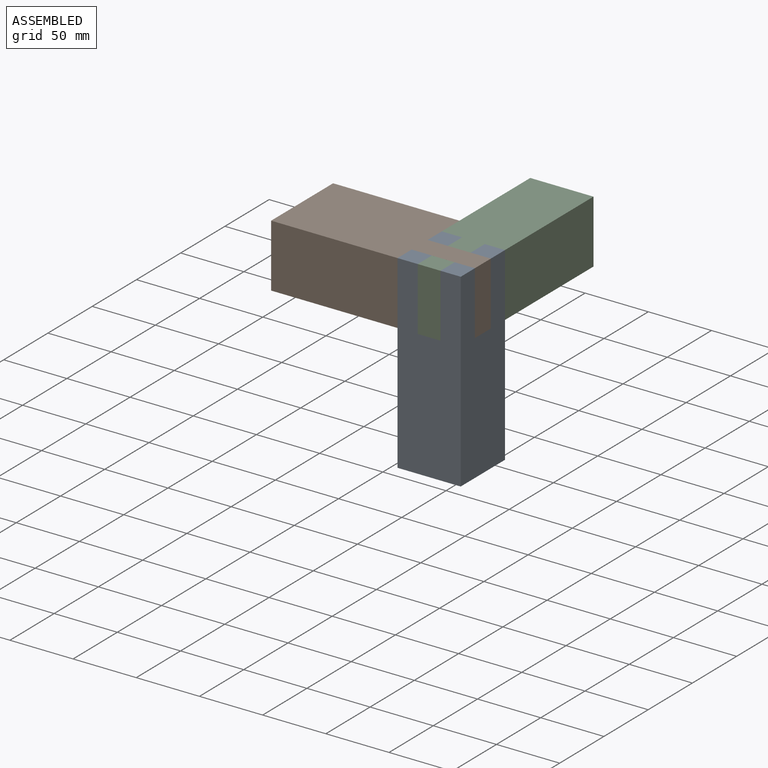
[diagram: assembled view]
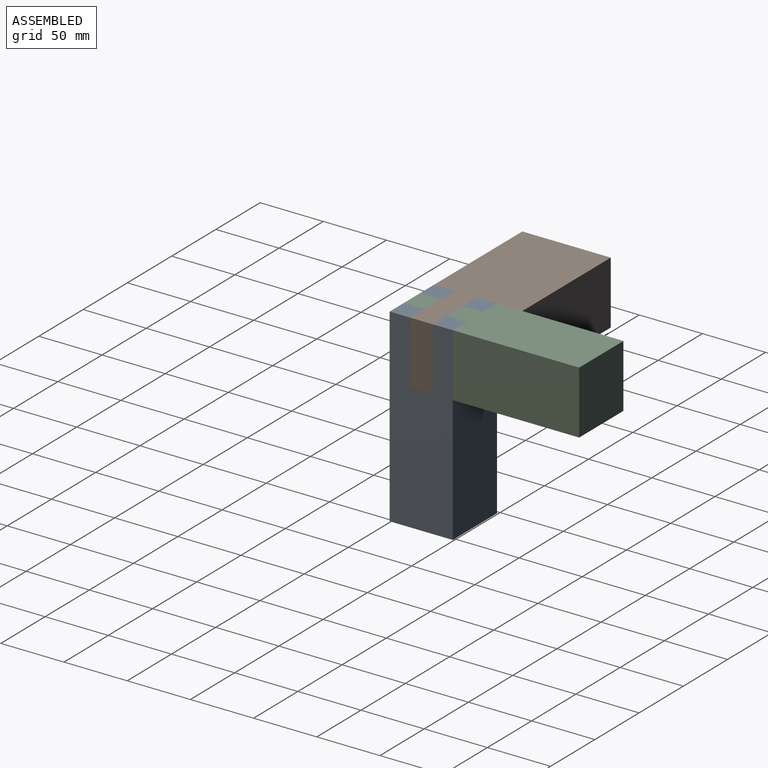
[diagram: assembled view, second angle]
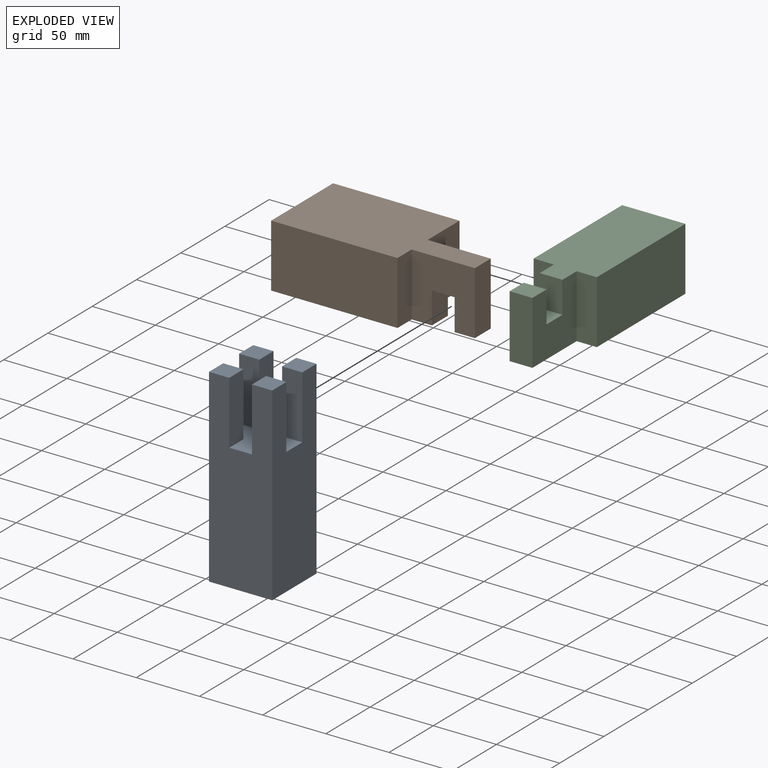
[diagram: exploded view]
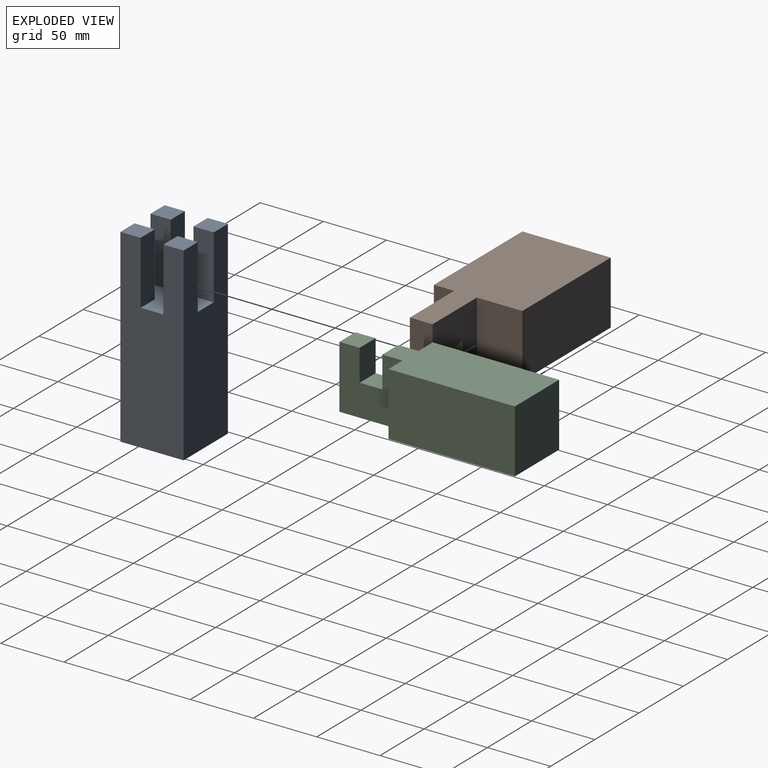
[diagram: exploded view, second angle]
ASSEMBLY  parts=3 mates=2
PART A: 18 faces, bbox 50x50x150 mm
  f0: plane 16x16mm, normal (0,0,1), area 256mm2, adj f5,f6,f9,f10
  f1: plane 16x16mm, normal (0,0,1), area 256mm2, adj f3,f4,f13,f14
  f2: plane 16x16mm, normal (0,0,1), area 256mm2, adj f4,f6,f15,f16
  f3: plane 150x50mm, normal (0,-1,0), area 6600mm2, adj f1,f4,f5,f7,f8,f12,f13,f17
  f4: plane 150x50mm, normal (1,0,0), area 6600mm2, adj f1,f2,f3,f6,f7,f14,f15,f17
  f5: plane 150x50mm, normal (-1,0,0), area 6600mm2, adj f0,f3,f6,f7,f8,f10,f11,f17
  f6: plane 150x50mm, normal (0,1,0), area 6600mm2, adj f0,f2,f4,f5,f7,f9,f16,f17
  f7: plane 50x50mm, normal (0,0,-1), area 2500mm2, adj f3,f4,f5,f6
  f8: plane 16x16mm, normal (0,0,1), area 256mm2, adj f3,f5,f11,f12
  f9: plane 50x16mm, normal (1,0,0), area 800mm2, adj f0,f6,f10,f17
  f10: plane 50x16mm, normal (0,-1,0), area 800mm2, adj f0,f5,f9,f17
  f11: plane 50x16mm, normal (0,1,0), area 800mm2, adj f5,f8,f12,f17
  f12: plane 50x16mm, normal (1,0,0), area 800mm2, adj f3,f8,f11,f17
  f13: plane 50x16mm, normal (-1,0,0), area 800mm2, adj f1,f3,f14,f17
  f14: plane 50x16mm, normal (0,1,0), area 800mm2, adj f1,f4,f13,f17
  f15: plane 50x16mm, normal (0,-1,0), area 800mm2, adj f2,f4,f16,f17
  f16: plane 50x16mm, normal (-1,0,0), area 800mm2, adj f2,f6,f15,f17
  f17: plane 50x50mm, normal (0,0,1), area 1476mm2, adj f3,f4,f5,f6,f9,f10,f11,f12
PART B: 14 faces, bbox 150x70x50 mm
  f0: plane 18x16mm, normal (0,0,-1), area 288mm2, adj f1,f2,f8,f11
  f1: plane 50x50mm, normal (0,-1,0), area 2050mm2, adj f0,f2,f3,f7,f10,f11,f12,f13
  f2: plane 50x18mm, normal (1,0,0), area 900mm2, adj f0,f1,f7,f8
  f3: plane 116x70mm, normal (0,0,-1), area 7288mm2, adj f1,f4,f5,f6,f8,f9,f10,f12
  f4: plane 70x50mm, normal (-1,0,0), area 3500mm2, adj f3,f5,f6,f7
  f5: plane 100x50mm, normal (0,-1,0), area 5000mm2, adj f3,f4,f7,f10
  f6: plane 100x50mm, normal (0,1,0), area 5000mm2, adj f3,f4,f7,f9
  f7: plane 150x70mm, normal (0,0,1), area 7900mm2, adj f1,f2,f4,f5,f6,f8,f9,f10
  f8: plane 50x50mm, normal (0,1,0), area 2050mm2, adj f0,f2,f3,f7,f9,f11,f12,f13
  f9: plane 50x36mm, normal (1,0,0), area 1800mm2, adj f3,f6,f7,f8
  f10: plane 50x16mm, normal (1,0,0), area 800mm2, adj f1,f3,f5,f7
  f11: plane 25x18mm, normal (-1,0,0), area 450mm2, adj f0,f1,f8,f13
  f12: plane 25x18mm, normal (1,0,0), area 450mm2, adj f1,f3,f8,f13
  f13: plane 18x18mm, normal (0,0,-1), area 324mm2, adj f1,f8,f11,f12
PART C: 14 faces, bbox 150x50x50 mm
  f0: plane 18x16mm, normal (0,0,-1), area 288mm2, adj f1,f2,f8,f11
  f1: plane 50x50mm, normal (0,-1,0), area 2050mm2, adj f0,f2,f3,f7,f10,f11,f12,f13
  f2: plane 50x18mm, normal (1,0,0), area 900mm2, adj f0,f1,f7,f8
  f3: plane 116x50mm, normal (0,0,-1), area 5288mm2, adj f1,f4,f5,f6,f8,f9,f10,f12
  f4: plane 50x50mm, normal (-1,0,0), area 2500mm2, adj f3,f5,f6,f7
  f5: plane 100x50mm, normal (0,-1,0), area 5000mm2, adj f3,f4,f7,f10
  f6: plane 100x50mm, normal (0,1,0), area 5000mm2, adj f3,f4,f7,f9
  f7: plane 150x50mm, normal (0,0,1), area 5900mm2, adj f1,f2,f4,f5,f6,f8,f9,f10
  f8: plane 50x50mm, normal (0,1,0), area 2050mm2, adj f0,f2,f3,f7,f9,f11,f12,f13
  f9: plane 50x16mm, normal (1,0,0), area 800mm2, adj f3,f6,f7,f8
  f10: plane 50x16mm, normal (1,0,0), area 800mm2, adj f1,f3,f5,f7
  f11: plane 25x18mm, normal (-1,0,0), area 450mm2, adj f0,f1,f8,f13
  f12: plane 25x18mm, normal (1,0,0), area 450mm2, adj f1,f3,f8,f13
  f13: plane 18x18mm, normal (0,0,-1), area 324mm2, adj f1,f8,f11,f12
PLACE A t=(58.96,-46.13,-29.4)mm
PLACE B t=(-41.04,-46.13,-29.4)mm
PLACE C rot(axis=(0.71,-0.71,0),180deg) t=(108.96,103.87,-79.4)mm
MATE planar C.f8 <-> A.f12  axis (-1,0,0) through (74.96,-46.13,-79.4)mm
MATE planar B.f8 <-> A.f15  axis (0,1,0) through (108.96,-12.13,-79.4)mm
